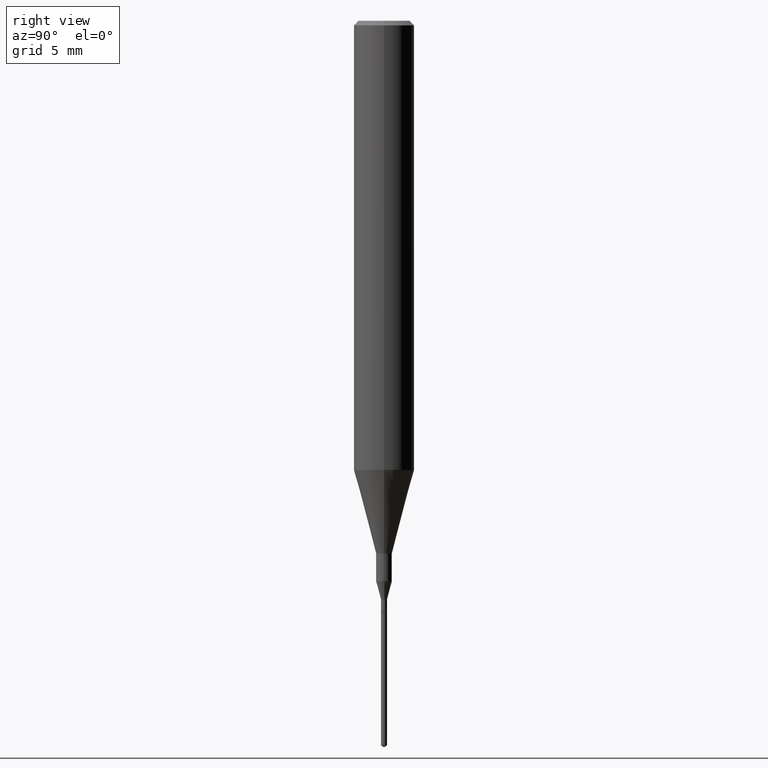
[diagram: clean part render]
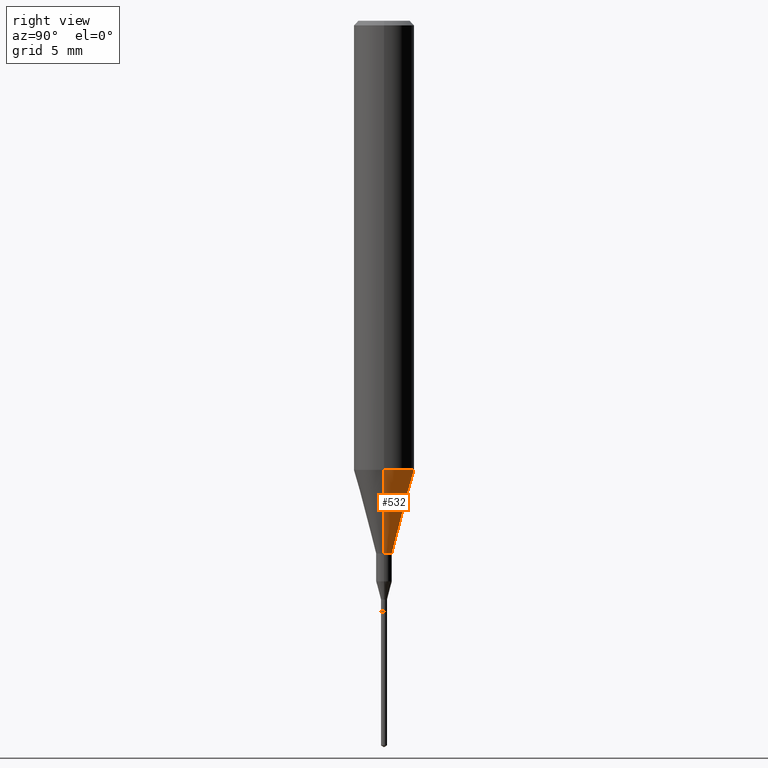
[diagram: same view with one face highlighted and labeled with its STEP entity id]
A machine part, right view. The second image highlights one B-rep face of the part: STEP entity #532.
In plain terms, the highlighted conical surface has half-angle 15 deg.
Its self-contained STEP definition (entity closure, byte-faithful):
#16 = DIRECTION ( 'NONE',  ( 1.000000000000000000, -6.982962677686265922E-15, 0.000000000000000000 ) ) ;
#24 = AXIS2_PLACEMENT_3D ( 'NONE', #155, #571, #349 ) ;
#40 = AXIS2_PLACEMENT_3D ( 'NONE', #311, #87, #583 ) ;
#59 = DIRECTION ( 'NONE',  ( 0.2588190451025214611, 1.565188264969620982E-15, 0.9659258262890679791 ) ) ;
#87 = DIRECTION ( 'NONE',  ( -2.445468806185136597E-29, 3.491481338843145583E-15, 1.000000000000000000 ) ) ;
#89 = CARTESIAN_POINT ( 'NONE',  ( -0.01624999999999999709, -3.825859713010287951E-15, -1.100000000000000089 ) ) ;
#112 = EDGE_CURVE ( 'NONE', #359, #164, #574, .T. ) ;
#132 = EDGE_CURVE ( 'NONE', #312, #359, #491, .T. ) ;
#137 = ORIENTED_EDGE ( 'NONE', *, *, #262, .F. ) ;
#141 = AXIS2_PLACEMENT_3D ( 'NONE', #514, #570, #16 ) ;
#155 = CARTESIAN_POINT ( 'NONE',  ( 2.267909797027042920E-29, -3.237974131778804114E-15, -0.9273926501499395458 ) ) ;
#164 = VERTEX_POINT ( 'NONE', #490 ) ;
#218 = ORIENTED_EDGE ( 'NONE', *, *, #112, .T. ) ;
#240 = LINE ( 'NONE', #292, #400 ) ;
#256 = CIRCLE ( 'NONE', #141, 0.06250000000000011102 ) ;
#262 = EDGE_CURVE ( 'NONE', #312, #362, #240, .T. ) ;
#270 = EDGE_CURVE ( 'NONE', #362, #164, #256, .T. ) ;
#286 = CARTESIAN_POINT ( 'NONE',  ( -0.06250000000000011102, -2.793884921928740709E-15, -0.9273926501499395458 ) ) ;
#292 = CARTESIAN_POINT ( 'NONE',  ( 0.06250000000000011102, -3.674409299134196572E-15, -0.9273926501499395458 ) ) ;
#311 = CARTESIAN_POINT ( 'NONE',  ( 2.690015686803650369E-29, -3.840629472727460101E-15, -1.100000000000000089 ) ) ;
#312 = VERTEX_POINT ( 'NONE', #432 ) ;
#314 = VECTOR ( 'NONE', #515, 39.37007874015748143 ) ;
#339 = ORIENTED_EDGE ( 'NONE', *, *, #132, .T. ) ;
#349 = DIRECTION ( 'NONE',  ( 1.000000000000000000, -6.982962677686265922E-15, 0.000000000000000000 ) ) ;
#359 = VERTEX_POINT ( 'NONE', #89 ) ;
#362 = VERTEX_POINT ( 'NONE', #540 ) ;
#400 = VECTOR ( 'NONE', #59, 39.37007874015748143 ) ;
#432 = CARTESIAN_POINT ( 'NONE',  ( 0.01624999999999999709, -3.954102616239861778E-15, -1.100000000000000089 ) ) ;
#433 = EDGE_LOOP ( 'NONE', ( #339, #218, #534, #137 ) ) ;
#449 = CONICAL_SURFACE ( 'NONE', #24, 0.06250000000000011102, 0.2617993877991501850 ) ;
#490 = CARTESIAN_POINT ( 'NONE',  ( -0.06250000000000011102, -2.793884921928740709E-15, -0.9273926501499395458 ) ) ;
#491 = CIRCLE ( 'NONE', #40, 0.01624999999999999709 ) ;
#514 = CARTESIAN_POINT ( 'NONE',  ( 2.267909797027042920E-29, -3.237974131778804114E-15, -0.9273926501499395458 ) ) ;
#515 = DIRECTION ( 'NONE',  ( -0.2588190451025214611, 5.211531920934550253E-15, 0.9659258262890679791 ) ) ;
#532 = ADVANCED_FACE ( 'NONE', ( #567 ), #449, .T. ) ;
#534 = ORIENTED_EDGE ( 'NONE', *, *, #270, .F. ) ;
#540 = CARTESIAN_POINT ( 'NONE',  ( 0.06250000000000011102, -3.674409299134196572E-15, -0.9273926501499395458 ) ) ;
#567 = FACE_OUTER_BOUND ( 'NONE', #433, .T. ) ;
#570 = DIRECTION ( 'NONE',  ( -2.445468806185136597E-29, 3.491481338843145583E-15, 1.000000000000000000 ) ) ;
#571 = DIRECTION ( 'NONE',  ( -2.445468806185136597E-29, 3.491481338843145583E-15, 1.000000000000000000 ) ) ;
#574 = LINE ( 'NONE', #286, #314 ) ;
#583 = DIRECTION ( 'NONE',  ( 1.000000000000000000, -6.982962677686259611E-15, 0.000000000000000000 ) ) ;